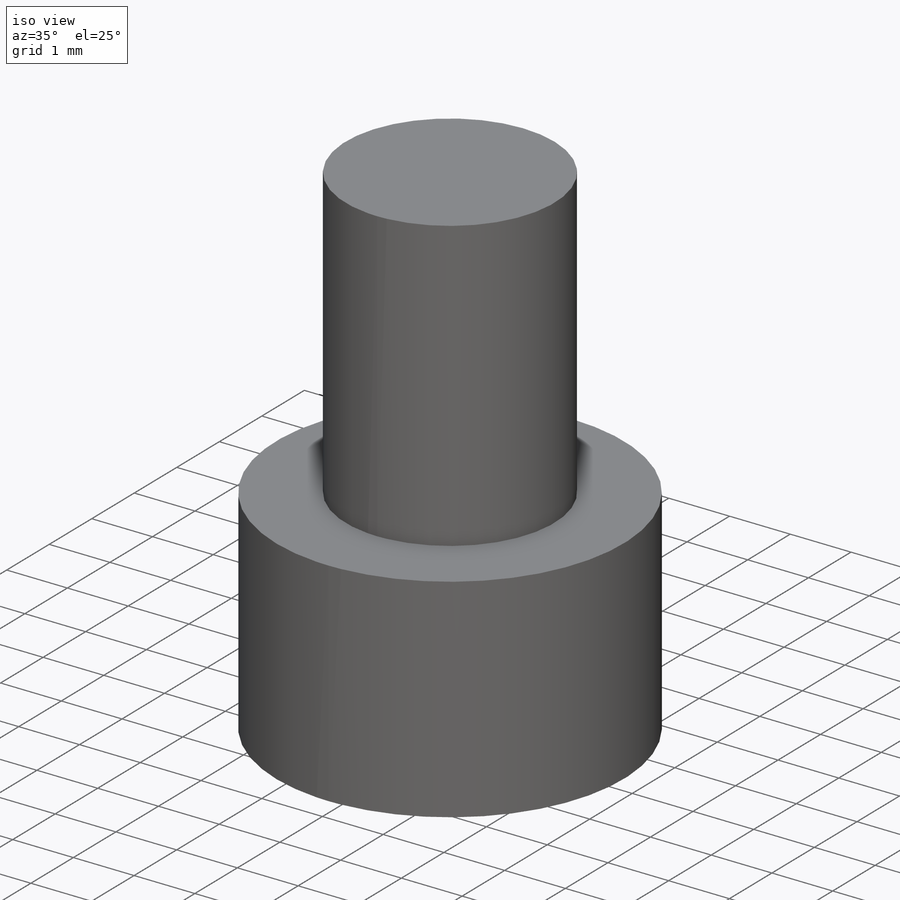
[diagram: iso view]
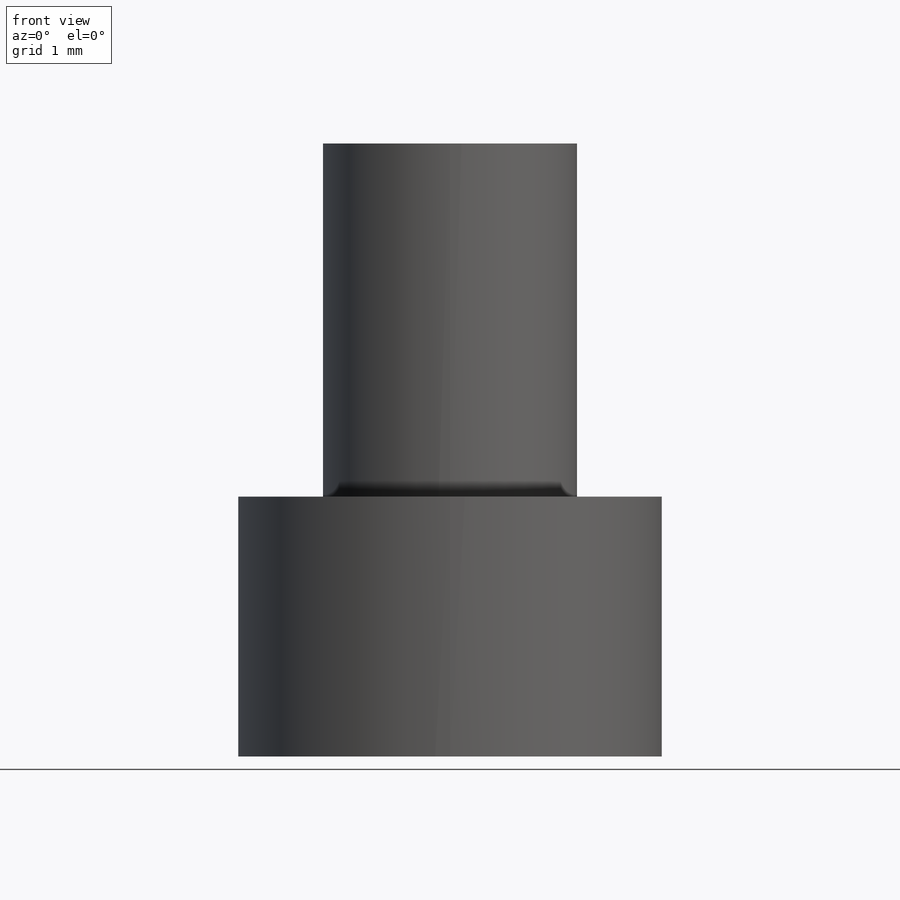
[diagram: front view]
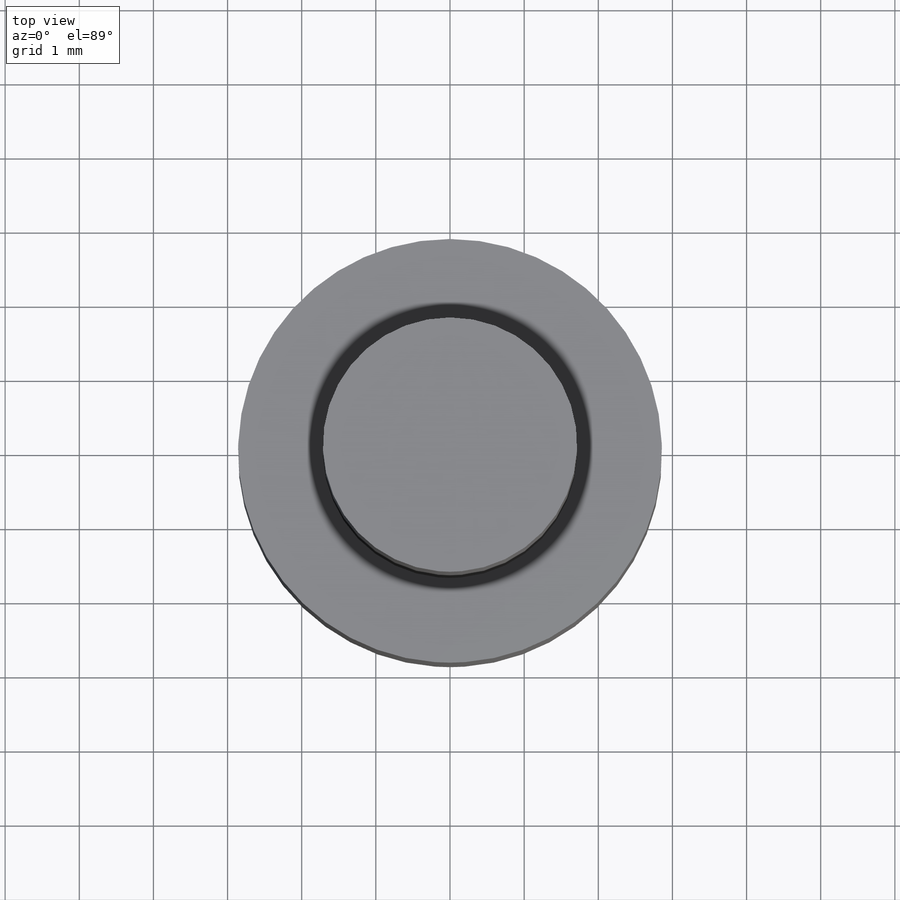
[diagram: top view]
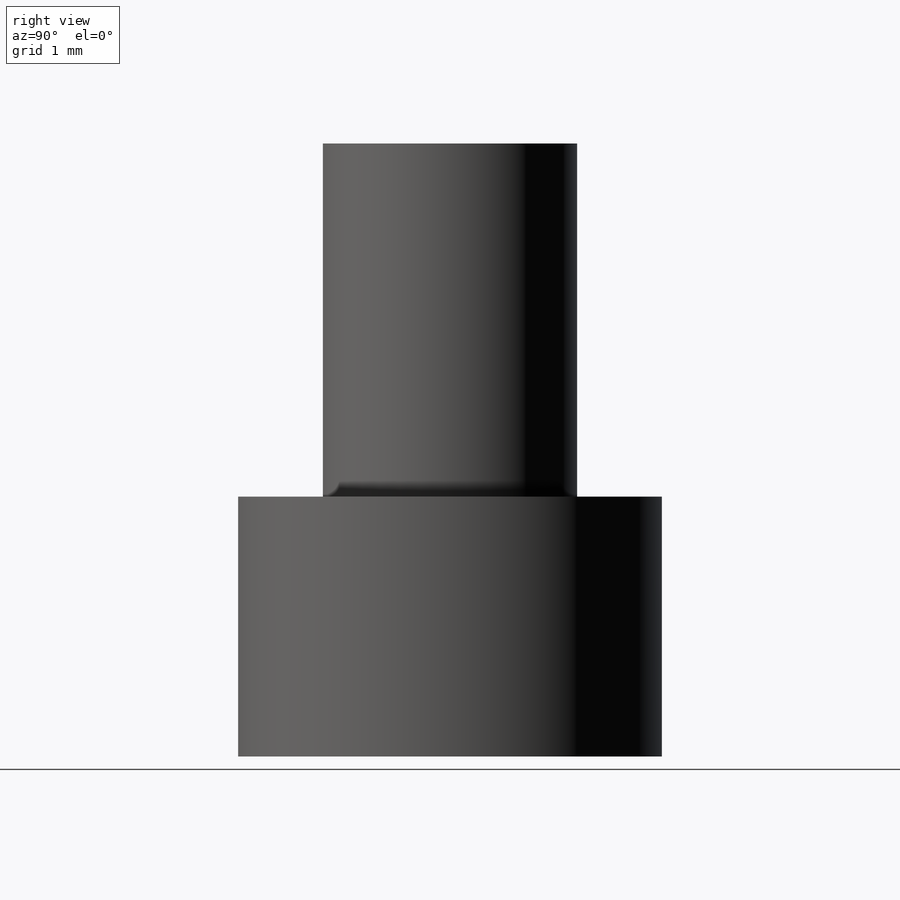
[diagram: right view]
SOLIDWORKS PART (.sldprt)
format: sldprt  version: not decoded by parser v0  size: 131,584 bytes
history: native  units: mm
features: sketch x3, extrude x2, material x1, cut_extrude x1 (+13 scaffold rows collapsed)
feature tree (20):
  scaffold x13  (default folders/planes/origin — collapsed)
  material  "Material <not specified>"
  sketch  "Sketch1"  dims[D1=5.715mm]
  extrude  "Boss-Extrude1"  Depth=3.5052mm
  sketch  "Sketch2"  dims[D1=~2.778125mm D2=~1.603951mm]
  cut_extrude  "Cut-Extrude1"  Depth=1.9558mm
  sketch  "Sketch3"  dims[D1=3.429mm]
  extrude  "Boss-Extrude2"  Depth=4.7625mm
decode coverage: 6 of 6 modeling features carry decoded parameters
note: ~ marks probable driven/reference dimensions
note: suppression state not decoded; provenance and decode notes live in map.json
